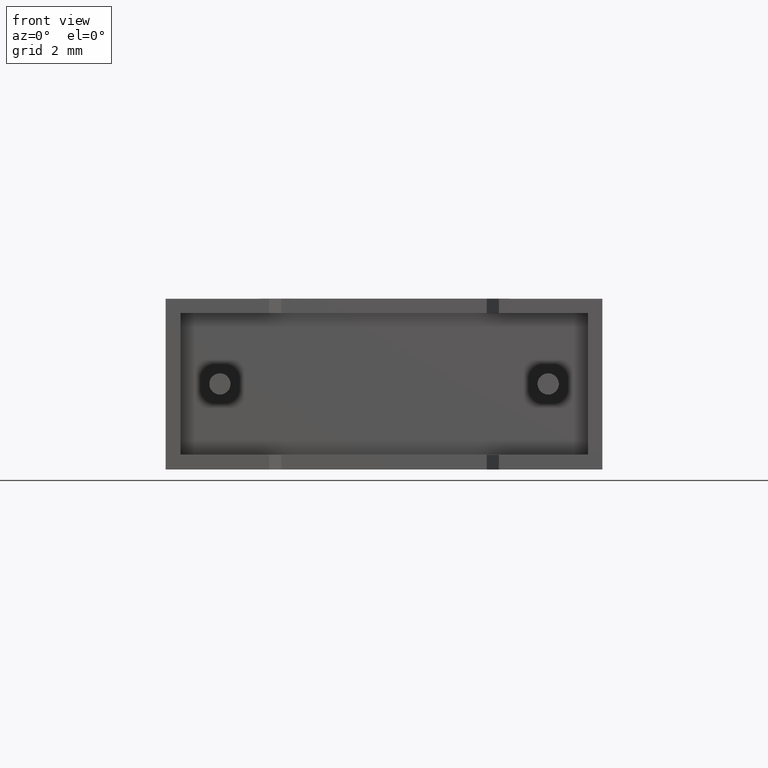
[diagram: clean part render]
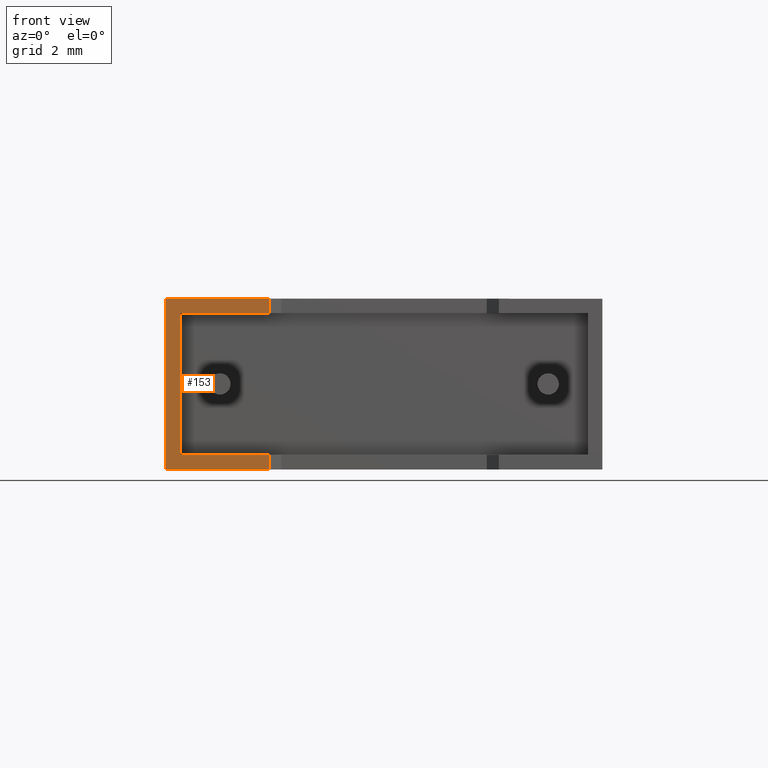
[diagram: same view with one face highlighted and labeled with its STEP entity id]
A machine part, front view. The second image highlights one B-rep face of the part: STEP entity #153.
In plain terms, the highlighted planar face has unit normal (0, 1, 0).
Its self-contained STEP definition (entity closure, byte-faithful):
#25 = VERTEX_POINT ( 'NONE', #2446 ) ;
#34 = LINE ( 'NONE', #2111, #1266 ) ;
#38 = CARTESIAN_POINT ( 'NONE',  ( 0.000000000000000000, 0.000000000000000000, 5.200000000000000178 ) ) ;
#50 = ORIENTED_EDGE ( 'NONE', *, *, #2355, .F. ) ;
#52 = LINE ( 'NONE', #2666, #1326 ) ;
#153 = ADVANCED_FACE ( 'NONE', ( #1914 ), #919, .F. ) ;
#189 = VECTOR ( 'NONE', #2231, 1000.000000000000000 ) ;
#222 = EDGE_CURVE ( 'NONE', #275, #345, #52, .T. ) ;
#231 = VERTEX_POINT ( 'NONE', #1998 ) ;
#261 = CARTESIAN_POINT ( 'NONE',  ( 0.4433332889999999082, 0.000000000000000000, 4.756666710999998493 ) ) ;
#275 = VERTEX_POINT ( 'NONE', #1244 ) ;
#345 = VERTEX_POINT ( 'NONE', #645 ) ;
#438 = DIRECTION ( 'NONE',  ( 1.000000000000000000, 0.000000000000000000, 0.000000000000000000 ) ) ;
#468 = VERTEX_POINT ( 'NONE', #960 ) ;
#479 = EDGE_CURVE ( 'NONE', #345, #25, #2813, .T. ) ;
#494 = VERTEX_POINT ( 'NONE', #944 ) ;
#530 = ORIENTED_EDGE ( 'NONE', *, *, #1304, .T. ) ;
#561 = CARTESIAN_POINT ( 'NONE',  ( 12.85666671100000080, 0.000000000000000000, 4.756666711000000269 ) ) ;
#592 = VECTOR ( 'NONE', #438, 1000.000000000000000 ) ;
#645 = CARTESIAN_POINT ( 'NONE',  ( 0.000000000000000000, 0.000000000000000000, 0.000000000000000000 ) ) ;
#735 = DIRECTION ( 'NONE',  ( 0.000000000000000000, -0.000000000000000000, 1.000000000000000000 ) ) ;
#857 = CARTESIAN_POINT ( 'NONE',  ( 0.4433332890000000193, 0.000000000000000000, 0.4433332890000000193 ) ) ;
#919 = PLANE ( 'NONE',  #2373 ) ;
#944 = CARTESIAN_POINT ( 'NONE',  ( 3.150000000000000799, 1.928818708657081098E-16, 0.4433332890000000193 ) ) ;
#957 = DIRECTION ( 'NONE',  ( 1.000000000000000000, 0.000000000000000000, 0.000000000000000000 ) ) ;
#960 = CARTESIAN_POINT ( 'NONE',  ( 0.4433332890000000193, 0.000000000000000000, 0.4433332889999999082 ) ) ;
#963 = DIRECTION ( 'NONE',  ( 0.000000000000000000, 1.000000000000000000, 0.000000000000000000 ) ) ;
#1006 = ORIENTED_EDGE ( 'NONE', *, *, #1649, .T. ) ;
#1060 = VERTEX_POINT ( 'NONE', #1270 ) ;
#1071 = ORIENTED_EDGE ( 'NONE', *, *, #1596, .F. ) ;
#1203 = LINE ( 'NONE', #261, #1227 ) ;
#1227 = VECTOR ( 'NONE', #2624, 1000.000000000000000 ) ;
#1244 = CARTESIAN_POINT ( 'NONE',  ( 0.000000000000000000, 0.000000000000000000, 5.200000000000000178 ) ) ;
#1266 = VECTOR ( 'NONE', #957, 1000.000000000000000 ) ;
#1270 = CARTESIAN_POINT ( 'NONE',  ( 3.150000000000000799, 1.928818708657081098E-16, 4.756666710999998493 ) ) ;
#1291 = LINE ( 'NONE', #857, #189 ) ;
#1298 = CARTESIAN_POINT ( 'NONE',  ( 3.150000000000000799, 1.928818708657081098E-16, 0.000000000000000000 ) ) ;
#1304 = EDGE_CURVE ( 'NONE', #1060, #231, #1502, .T. ) ;
#1325 = CARTESIAN_POINT ( 'NONE',  ( 0.4433332889999999082, 0.000000000000000000, 4.756666710999998493 ) ) ;
#1326 = VECTOR ( 'NONE', #2195, 1000.000000000000000 ) ;
#1492 = DIRECTION ( 'NONE',  ( -1.000000000000000000, 0.000000000000000000, -1.397467881513903204E-16 ) ) ;
#1501 = EDGE_CURVE ( 'NONE', #1652, #468, #1203, .T. ) ;
#1502 = LINE ( 'NONE', #2468, #1871 ) ;
#1596 = EDGE_CURVE ( 'NONE', #1060, #1652, #1952, .T. ) ;
#1611 = VECTOR ( 'NONE', #3010, 1000.000000000000000 ) ;
#1649 = EDGE_CURVE ( 'NONE', #25, #494, #2496, .T. ) ;
#1652 = VERTEX_POINT ( 'NONE', #1325 ) ;
#1709 = ORIENTED_EDGE ( 'NONE', *, *, #2521, .F. ) ;
#1757 = DIRECTION ( 'NONE',  ( -0.000000000000000000, -0.000000000000000000, 1.000000000000000000 ) ) ;
#1788 = EDGE_LOOP ( 'NONE', ( #2984, #1006, #50, #2260, #1071, #530, #1709, #1882 ) ) ;
#1843 = CARTESIAN_POINT ( 'NONE',  ( 0.000000000000000000, 0.000000000000000000, 0.000000000000000000 ) ) ;
#1871 = VECTOR ( 'NONE', #1757, 1000.000000000000000 ) ;
#1882 = ORIENTED_EDGE ( 'NONE', *, *, #222, .T. ) ;
#1914 = FACE_OUTER_BOUND ( 'NONE', #1788, .T. ) ;
#1952 = LINE ( 'NONE', #561, #2972 ) ;
#1998 = CARTESIAN_POINT ( 'NONE',  ( 3.150000000000000799, 1.928818708657081098E-16, 5.200000000000000178 ) ) ;
#2111 = CARTESIAN_POINT ( 'NONE',  ( 0.000000000000000000, 0.000000000000000000, 5.200000000000000178 ) ) ;
#2195 = DIRECTION ( 'NONE',  ( -0.000000000000000000, -0.000000000000000000, -1.000000000000000000 ) ) ;
#2231 = DIRECTION ( 'NONE',  ( 1.000000000000000000, 0.000000000000000000, 0.000000000000000000 ) ) ;
#2260 = ORIENTED_EDGE ( 'NONE', *, *, #1501, .F. ) ;
#2355 = EDGE_CURVE ( 'NONE', #468, #494, #1291, .T. ) ;
#2373 = AXIS2_PLACEMENT_3D ( 'NONE', #38, #963, #735 ) ;
#2446 = CARTESIAN_POINT ( 'NONE',  ( 3.150000000000000799, 1.928818708657081098E-16, 0.000000000000000000 ) ) ;
#2468 = CARTESIAN_POINT ( 'NONE',  ( 3.150000000000000799, 1.928818708657081098E-16, 0.000000000000000000 ) ) ;
#2496 = LINE ( 'NONE', #1298, #1611 ) ;
#2521 = EDGE_CURVE ( 'NONE', #275, #231, #34, .T. ) ;
#2624 = DIRECTION ( 'NONE',  ( 2.513606221479589745E-17, 0.000000000000000000, -1.000000000000000000 ) ) ;
#2666 = CARTESIAN_POINT ( 'NONE',  ( 0.000000000000000000, 0.000000000000000000, 5.200000000000000178 ) ) ;
#2813 = LINE ( 'NONE', #1843, #592 ) ;
#2972 = VECTOR ( 'NONE', #1492, 1000.000000000000000 ) ;
#2984 = ORIENTED_EDGE ( 'NONE', *, *, #479, .T. ) ;
#3010 = DIRECTION ( 'NONE',  ( -0.000000000000000000, -0.000000000000000000, 1.000000000000000000 ) ) ;